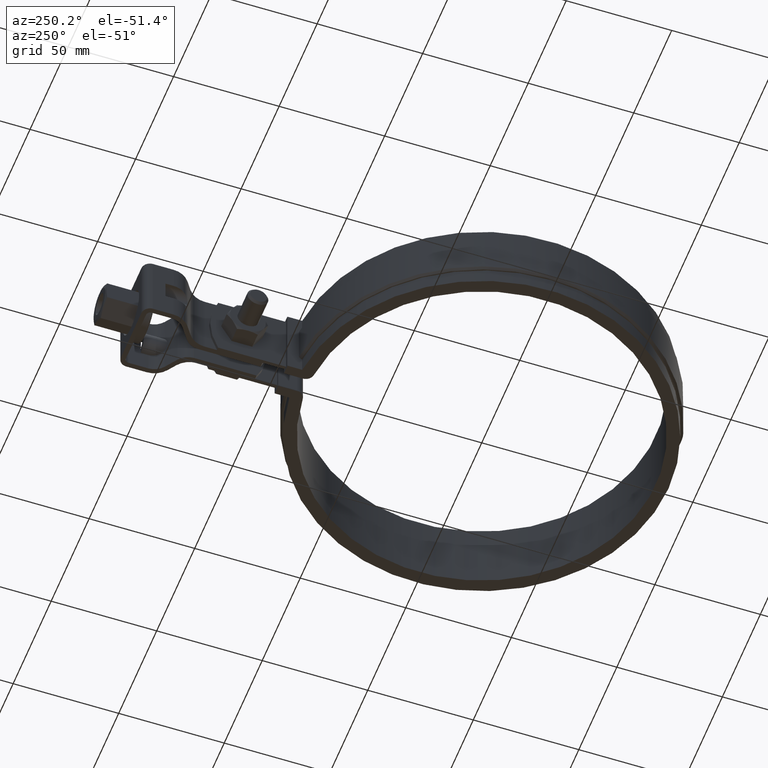
[diagram: clean part render]
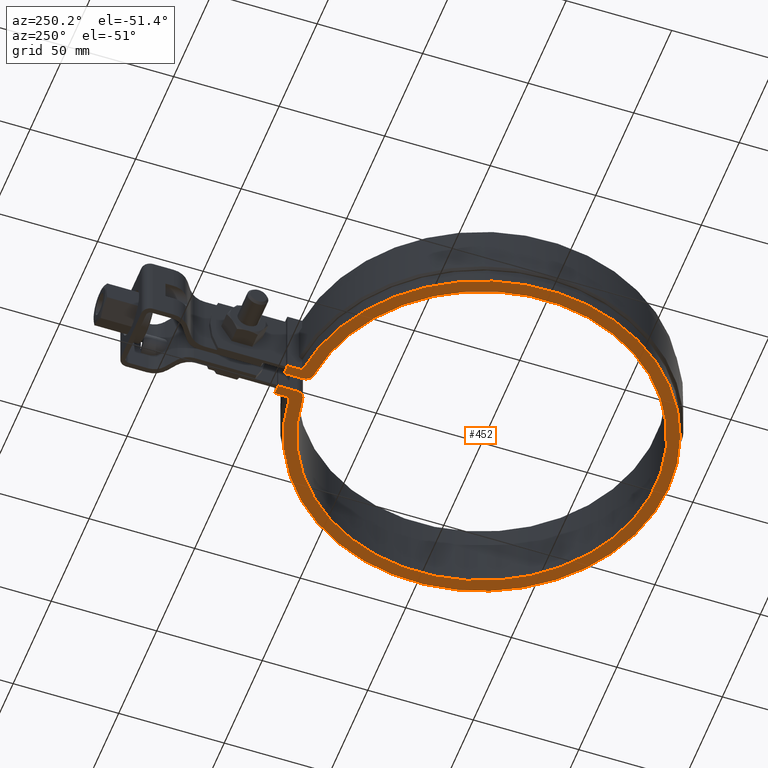
[diagram: same view with one face highlighted and labeled with its STEP entity id]
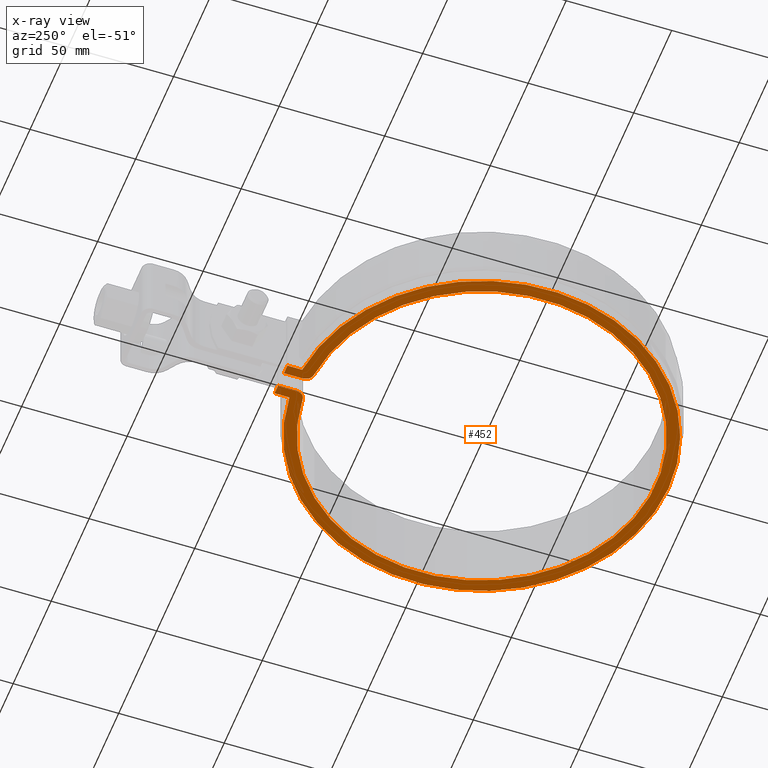
[diagram: x-ray of the same camera — body ghosted, the highlighted face saturated]
A machine part, auxiliary view. The second image highlights one B-rep face of the part: STEP entity #452.
The next image is the same camera in x-ray: the body ghosted, the highlighted face saturated — about 0% of this face is hidden behind the body in this view.
In plain terms, the highlighted planar face has unit normal (0, 0, 1).
Its self-contained STEP definition (entity closure, byte-faithful):
#452 = ADVANCED_FACE( '', ( #796 ), #797, .F. );
#796 = FACE_OUTER_BOUND( '', #1550, .T. );
#797 = PLANE( '', #1551 );
#1550 = EDGE_LOOP( '', ( #4649, #4650, #4651, #4652, #4653, #4654, #4655, #4656, #4657, #4658 ) );
#1551 = AXIS2_PLACEMENT_3D( '', #4659, #4660, #4661 );
#4649 = ORIENTED_EDGE( '', *, *, #5365, .F. );
#4650 = ORIENTED_EDGE( '', *, *, #5377, .F. );
#4651 = ORIENTED_EDGE( '', *, *, #5378, .F. );
#4652 = ORIENTED_EDGE( '', *, *, #5379, .F. );
#4653 = ORIENTED_EDGE( '', *, *, #5380, .F. );
#4654 = ORIENTED_EDGE( '', *, *, #5381, .F. );
#4655 = ORIENTED_EDGE( '', *, *, #5382, .F. );
#4656 = ORIENTED_EDGE( '', *, *, #5383, .F. );
#4657 = ORIENTED_EDGE( '', *, *, #5384, .F. );
#4658 = ORIENTED_EDGE( '', *, *, #5290, .F. );
#4659 = CARTESIAN_POINT( '', ( 0.000000000000000, 0.000000000000000, -33.5000000000000 ) );
#4660 = DIRECTION( '', ( 0.000000000000000, 0.000000000000000, 1.00000000000000 ) );
#4661 = DIRECTION( '', ( 1.00000000000000, 0.000000000000000, 0.000000000000000 ) );
#5290 = EDGE_CURVE( '', #6001, #6003, #6004, .F. );
#5365 = EDGE_CURVE( '', #6137, #6001, #6139, .F. );
#5377 = EDGE_CURVE( '', #6157, #6137, #6158, .T. );
#5378 = EDGE_CURVE( '', #6159, #6157, #6160, .F. );
#5379 = EDGE_CURVE( '', #6161, #6159, #6162, .T. );
#5380 = EDGE_CURVE( '', #6163, #6161, #6164, .F. );
#5381 = EDGE_CURVE( '', #6165, #6163, #6166, .F. );
#5382 = EDGE_CURVE( '', #6167, #6165, #6168, .F. );
#5383 = EDGE_CURVE( '', #6169, #6167, #6170, .T. );
#5384 = EDGE_CURVE( '', #6003, #6169, #6171, .F. );
#6001 = VERTEX_POINT( '', #8203 );
#6003 = VERTEX_POINT( '', #8206 );
#6004 = LINE( '', #8207, #8208 );
#6137 = VERTEX_POINT( '', #9105 );
#6139 = LINE( '', #9108, #9109 );
#6157 = VERTEX_POINT( '', #9388 );
#6158 = CIRCLE( '', #9389, 4.00000000000000 );
#6159 = VERTEX_POINT( '', #9390 );
#6160 = CIRCLE( '', #9391, 82.5000000000000 );
#6161 = VERTEX_POINT( '', #9392 );
#6162 = CIRCLE( '', #9393, 4.00000000000000 );
#6163 = VERTEX_POINT( '', #9394 );
#6164 = LINE( '', #9395, #9396 );
#6165 = VERTEX_POINT( '', #9397 );
#6166 = LINE( '', #9398, #9399 );
#6167 = VERTEX_POINT( '', #9400 );
#6168 = LINE( '', #9401, #9402 );
#6169 = VERTEX_POINT( '', #9403 );
#6170 = CIRCLE( '', #9404, 88.5000000000000 );
#6171 = LINE( '', #9405, #9406 );
#8203 = CARTESIAN_POINT( '', ( -3.80000000000000, 95.1000000000000, -33.5000000000000 ) );
#8206 = CARTESIAN_POINT( '', ( -8.39999999999999, 95.1000000000000, -33.5000000000000 ) );
#8207 = CARTESIAN_POINT( '', ( -3.80000000000000, 95.1000000000000, -33.5000000000000 ) );
#8208 = VECTOR( '', #10034, 1000.00000000000 );
#9105 = CARTESIAN_POINT( '', ( -3.80000000000000, 86.1476058866409, -33.5000000000000 ) );
#9108 = CARTESIAN_POINT( '', ( -3.80000000000000, 86.1476058866409, -33.5000000000000 ) );
#9109 = VECTOR( '', #10110, 1000.00000000000 );
#9388 = CARTESIAN_POINT( '', ( -7.43930635838154, 82.1639015681835, -33.5000000000000 ) );
#9389 = AXIS2_PLACEMENT_3D( '', #10116, #10117, #10118 );
#9390 = CARTESIAN_POINT( '', ( 7.43930635838153, 82.1639015681835, -33.5000000000000 ) );
#9391 = AXIS2_PLACEMENT_3D( '', #10119, #10120, #10121 );
#9392 = CARTESIAN_POINT( '', ( 3.80000000000002, 86.1476058866409, -33.5000000000000 ) );
#9393 = AXIS2_PLACEMENT_3D( '', #10122, #10123, #10124 );
#9394 = CARTESIAN_POINT( '', ( 3.80000000000002, 95.1000000000000, -33.5000000000000 ) );
#9395 = CARTESIAN_POINT( '', ( 3.80000000000002, 95.1000000000000, -33.5000000000000 ) );
#9396 = VECTOR( '', #10125, 1000.00000000000 );
#9397 = CARTESIAN_POINT( '', ( 8.40000000000000, 95.1000000000000, -33.5000000000000 ) );
#9398 = CARTESIAN_POINT( '', ( 8.40000000000002, 95.1000000000000, -33.5000000000000 ) );
#9399 = VECTOR( '', #10126, 1000.00000000000 );
#9400 = CARTESIAN_POINT( '', ( 8.40000000000000, 88.1004540283420, -33.5000000000000 ) );
#9401 = CARTESIAN_POINT( '', ( 8.40000000000000, 88.1004540283420, -33.5000000000000 ) );
#9402 = VECTOR( '', #10127, 1000.00000000000 );
#9403 = CARTESIAN_POINT( '', ( -8.39999999999999, 88.1004540283420, -33.5000000000000 ) );
#9404 = AXIS2_PLACEMENT_3D( '', #10128, #10129, #10130 );
#9405 = CARTESIAN_POINT( '', ( -8.39999999999999, 95.1000000000000, -33.5000000000000 ) );
#9406 = VECTOR( '', #10131, 1000.00000000000 );
#10034 = DIRECTION( '', ( 1.00000000000000, 0.000000000000000, 0.000000000000000 ) );
#10110 = DIRECTION( '', ( -6.10365667473321E-017, -1.00000000000000, 0.000000000000000 ) );
#10116 = CARTESIAN_POINT( '', ( -7.80000000000000, 86.1476058866409, -33.5000000000000 ) );
#10117 = DIRECTION( '', ( 0.000000000000000, 0.000000000000000, 1.00000000000000 ) );
#10118 = DIRECTION( '', ( 1.00000000000000, 0.000000000000000, 0.000000000000000 ) );
#10119 = CARTESIAN_POINT( '', ( 0.000000000000000, 0.000000000000000, -33.5000000000000 ) );
#10120 = DIRECTION( '', ( 0.000000000000000, 0.000000000000000, 1.00000000000000 ) );
#10121 = DIRECTION( '', ( 1.00000000000000, 0.000000000000000, 0.000000000000000 ) );
#10122 = CARTESIAN_POINT( '', ( 7.80000000000001, 86.1476058866409, -33.5000000000000 ) );
#10123 = DIRECTION( '', ( 0.000000000000000, 0.000000000000000, 1.00000000000000 ) );
#10124 = DIRECTION( '', ( 1.00000000000000, 0.000000000000000, 0.000000000000000 ) );
#10125 = DIRECTION( '', ( 6.10365667473321E-017, 1.00000000000000, 0.000000000000000 ) );
#10126 = DIRECTION( '', ( 1.00000000000000, 0.000000000000000, 0.000000000000000 ) );
#10127 = DIRECTION( '', ( -6.42490176287706E-017, -1.00000000000000, 0.000000000000000 ) );
#10128 = CARTESIAN_POINT( '', ( 0.000000000000000, 0.000000000000000, -33.5000000000000 ) );
#10129 = DIRECTION( '', ( 0.000000000000000, 0.000000000000000, 1.00000000000000 ) );
#10130 = DIRECTION( '', ( 1.00000000000000, 0.000000000000000, 0.000000000000000 ) );
#10131 = DIRECTION( '', ( 6.42490176287706E-017, 1.00000000000000, 0.000000000000000 ) );